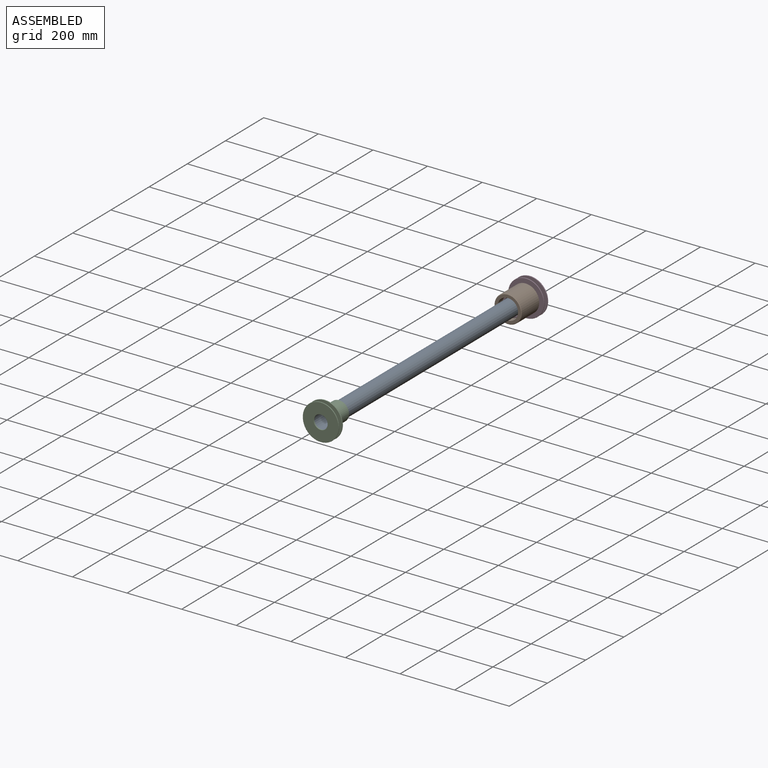
[diagram: assembled view]
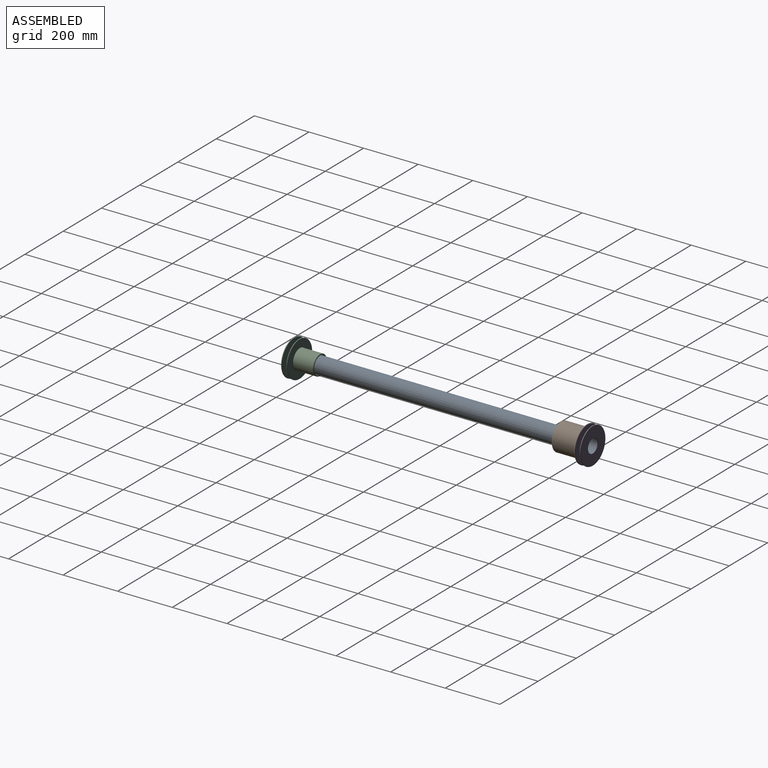
[diagram: assembled view, second angle]
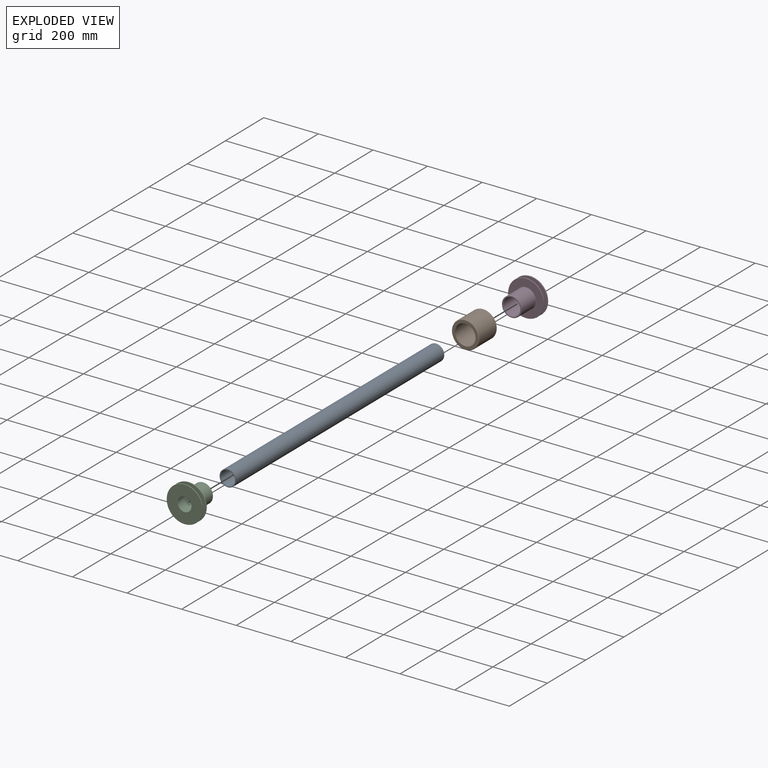
[diagram: exploded view]
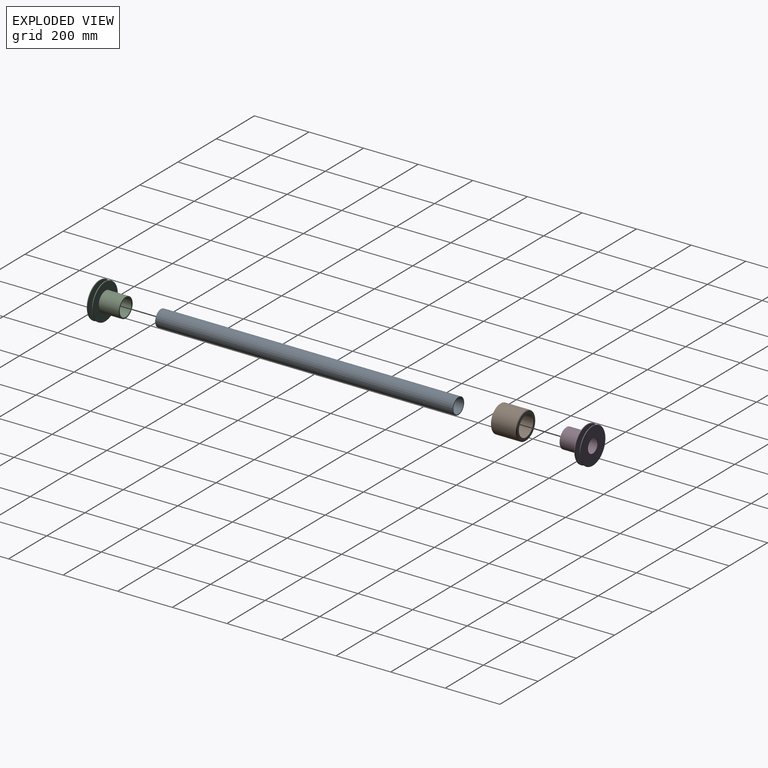
[diagram: exploded view, second angle]
ASSEMBLY  parts=4 mates=3
PART A: 4 faces, bbox 60x1090x60 mm
  f0: cylinder r=26.75mm len=1090mm, axis (0,1,0), area 183202mm2, adj f2,f3
  f1: cylinder r=30mm len=1090mm, axis (0,1,0), area 205460.2mm2, adj f2,f3
  f2: plane 60x60mm, normal (0,-1,0), area 579.4mm2, adj f0,f1
  f3: plane 60x60mm, normal (0,1,0), area 579.4mm2, adj f0,f1
PART B: 6 faces, bbox 100x95x100 mm
  f0: cylinder r=37.5mm len=95mm, axis (0,1,0), area 22383.8mm2, adj f2,f3
  f1: cylinder r=50mm len=100mm, axis (0,1,0), area 28588.5mm2, adj f4,f5
  f2: plane 96x96mm, normal (0,-1,0), area 2820.4mm2, adj f0,f5
  f3: plane 96x96mm, normal (0,1,0), area 2820.4mm2, adj f0,f4
  f4: cone r=50mm half-angle=45deg, axis (0,-1,0), area 870.8mm2, adj f1,f3
  f5: cone r=48mm half-angle=45deg, axis (0,1,0), area 870.8mm2, adj f1,f2
PART C: 22 faces, bbox 97.5x142.9x142.9 mm
  f0: plane 130x130mm, normal (-1,0,0), area 11149.5mm2, adj f12,f19
  f1: plane 70x70mm, normal (1,0,0), area 631.5mm2, adj f20,f21
  f2: cylinder r=36mm len=73mm, axis (1,0,0), area 16512.2mm2, adj f13,f21
  f3: plane 130x130mm, normal (1,0,0), area 8972.4mm2, adj f13,f14
  f4: cylinder r=66mm len=132mm, axis (1,0,0), area 518.4mm2, adj f14,f15
  f5: plane 130x130mm, normal (-1,0,0), area 8972.4mm2, adj f15,f16
  f6: cylinder r=36mm len=72mm, axis (1,0,0), area 3166.7mm2, adj f16,f17
  f7: plane 130x130mm, normal (1,0,0), area 8972.4mm2, adj f17,f18
  f8: cylinder r=66mm len=132mm, axis (1,0,0), area 518.4mm2, adj f18,f19
  f9: cylinder r=31mm len=93.25mm, axis (1,0,0), area 18163.1mm2, adj f10,f20
  f10: plane 62x62mm, normal (1,0,0), area 1055.6mm2, adj f9,f11
  f11: cylinder r=25mm len=50mm, axis (-1,0,0), area 353.4mm2, adj f10,f12
  f12: torus R=26mm, axis (1,0,0), area 250.3mm2, adj f0,f11
  f13: torus R=37mm, axis (-1,0,0), area 358.9mm2, adj f2,f3
  f14: torus R=65mm, axis (-1,0,0), area 647.8mm2, adj f3,f4
  f15: torus R=65mm, axis (1,0,0), area 647.8mm2, adj f4,f5
  f16: torus R=37mm, axis (1,0,0), area 358.9mm2, adj f5,f6
  f17: torus R=37mm, axis (-1,0,0), area 358.9mm2, adj f6,f7
  f18: torus R=65mm, axis (-1,0,0), area 647.8mm2, adj f7,f8
  f19: torus R=65mm, axis (1,0,0), area 647.8mm2, adj f0,f8
  f20: cone r=31mm half-angle=45deg, axis (1,0,0), area 279.9mm2, adj f1,f9
  f21: torus R=35mm, axis (-1,0,0), area 351.7mm2, adj f1,f2
PART D: same geometry as C
PLACE A t=(-318,274.76,-127.34)mm
PLACE B t=(-318,255.51,-127.34)mm
PLACE C rot(axis=(0,0,1),90deg) t=(-318,-818.49,-127.34)mm
PLACE D rot(axis=(0.58,-0.58,-0.58),120deg) t=(-318,278.01,-127.34)mm
MATE fastened C.f9 <-> A.f0  axis (0,1,0) through (-318,-815.24,-127.34)mm
MATE fastened D.f9 <-> A.f0  axis (0,-1,0) through (-318,274.76,-127.34)mm
MATE fastened B.f0 <-> D.f9  axis (0,1,0) through (-318,255.51,-127.34)mm
